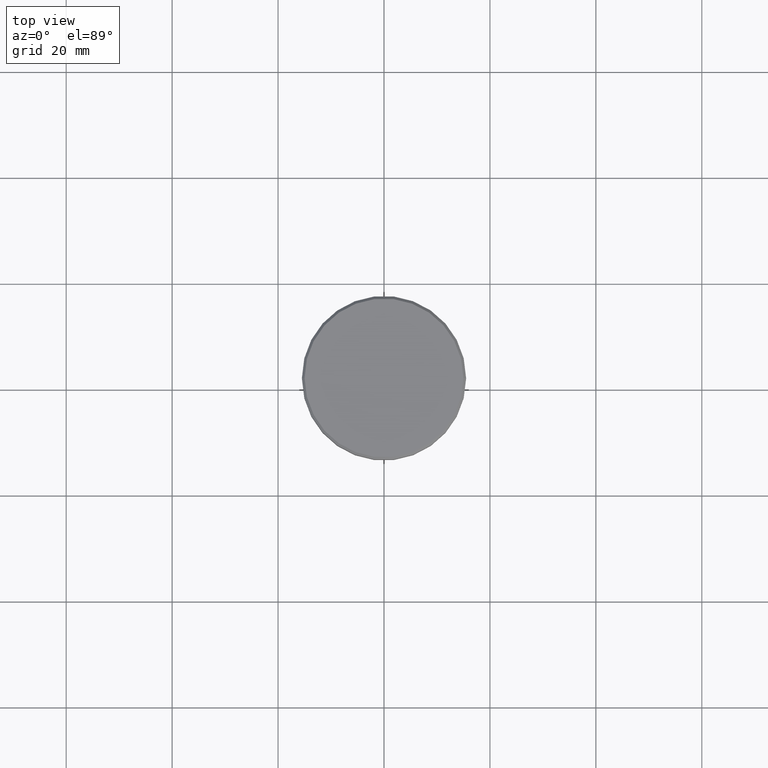
[diagram: clean part render]
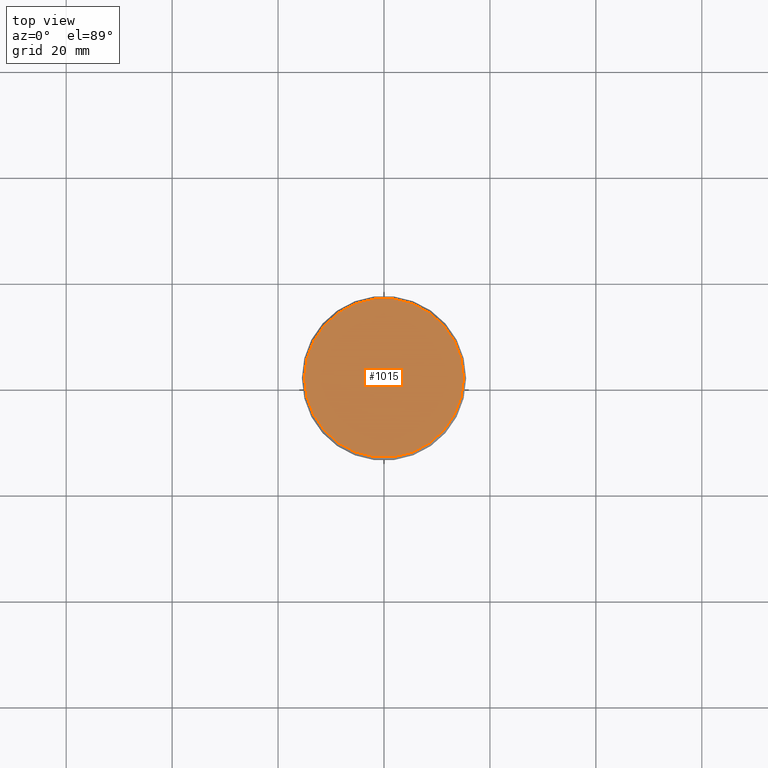
[diagram: same view with one face highlighted and labeled with its STEP entity id]
A machine part, top view. The second image highlights one B-rep face of the part: STEP entity #1015.
In plain terms, the highlighted planar face has unit normal (0, -0, 1).
Its self-contained STEP definition (entity closure, byte-faithful):
#50 = DIRECTION ( 'NONE',  ( -0.000000000000000000, -0.000000000000000000, 1.000000000000000000 ) ) ;
#103 = CARTESIAN_POINT ( 'NONE',  ( -15.00000000000002665, 0.000000000000000000, 0.000000000000000000 ) ) ;
#201 = FACE_OUTER_BOUND ( 'NONE', #1116, .T. ) ;
#321 = EDGE_CURVE ( 'NONE', #634, #806, #903, .T. ) ;
#330 = ORIENTED_EDGE ( 'NONE', *, *, #321, .T. ) ;
#391 = PLANE ( 'NONE',  #616 ) ;
#402 = AXIS2_PLACEMENT_3D ( 'NONE', #1146, #50, #851 ) ;
#469 = DIRECTION ( 'NONE',  ( -0.000000000000000000, -0.000000000000000000, 1.000000000000000000 ) ) ;
#598 = AXIS2_PLACEMENT_3D ( 'NONE', #771, #469, #835 ) ;
#616 = AXIS2_PLACEMENT_3D ( 'NONE', #754, #1126, #666 ) ;
#634 = VERTEX_POINT ( 'NONE', #103 ) ;
#666 = DIRECTION ( 'NONE',  ( 1.000000000000000000, 0.000000000000000000, 0.000000000000000000 ) ) ;
#674 = CIRCLE ( 'NONE', #598, 15.00000000000002665 ) ;
#754 = CARTESIAN_POINT ( 'NONE',  ( 0.000000000000000000, 0.000000000000000000, 0.000000000000000000 ) ) ;
#771 = CARTESIAN_POINT ( 'NONE',  ( 0.000000000000000000, 0.000000000000000000, 0.000000000000000000 ) ) ;
#806 = VERTEX_POINT ( 'NONE', #1012 ) ;
#835 = DIRECTION ( 'NONE',  ( 1.000000000000000000, 0.000000000000000000, 0.000000000000000000 ) ) ;
#851 = DIRECTION ( 'NONE',  ( 1.000000000000000000, 0.000000000000000000, 0.000000000000000000 ) ) ;
#903 = CIRCLE ( 'NONE', #402, 15.00000000000002665 ) ;
#1012 = CARTESIAN_POINT ( 'NONE',  ( 15.00000000000002665, 1.867586368699715348E-15, 0.000000000000000000 ) ) ;
#1015 = ADVANCED_FACE ( 'NONE', ( #201 ), #391, .T. ) ;
#1035 = ORIENTED_EDGE ( 'NONE', *, *, #1167, .T. ) ;
#1116 = EDGE_LOOP ( 'NONE', ( #330, #1035 ) ) ;
#1126 = DIRECTION ( 'NONE',  ( 0.000000000000000000, -0.000000000000000000, 1.000000000000000000 ) ) ;
#1146 = CARTESIAN_POINT ( 'NONE',  ( 0.000000000000000000, 0.000000000000000000, 0.000000000000000000 ) ) ;
#1167 = EDGE_CURVE ( 'NONE', #806, #634, #674, .T. ) ;